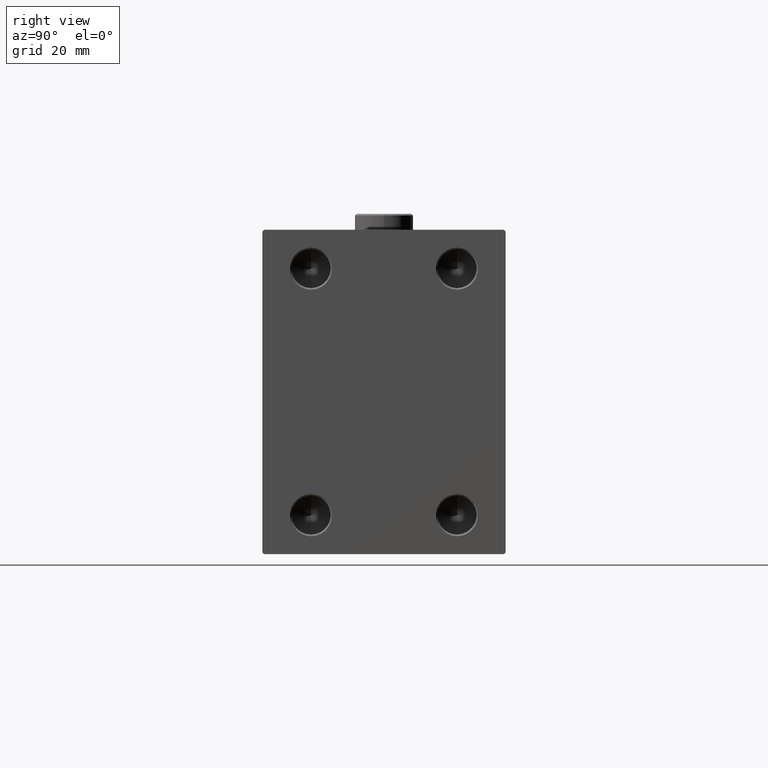
[diagram: clean part render]
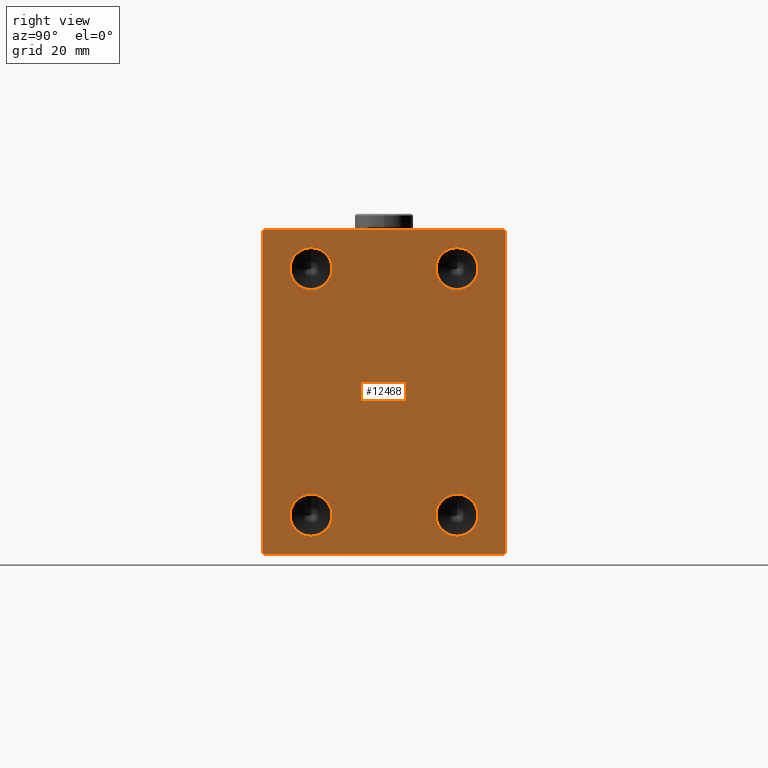
[diagram: same view with one face highlighted and labeled with its STEP entity id]
A machine part, right view. The second image highlights one B-rep face of the part: STEP entity #12468.
In plain terms, the highlighted planar face has unit normal (1, 0, 0).
Its self-contained STEP definition (entity closure, byte-faithful):
#618 = AXIS2_PLACEMENT_3D ( 'NONE', #9733, #37678, #13403 ) ;
#1132 = LINE ( 'NONE', #43417, #23156 ) ;
#1168 = EDGE_CURVE ( 'NONE', #33137, #35123, #9252, .T. ) ;
#2166 = EDGE_CURVE ( 'NONE', #28271, #3316, #8556, .T. ) ;
#2216 = CARTESIAN_POINT ( 'NONE',  ( 173.0000000000000000, -43.50000000000000711, -43.50000000000000711 ) ) ;
#2869 = ORIENTED_EDGE ( 'NONE', *, *, #38230, .T. ) ;
#3316 = VERTEX_POINT ( 'NONE', #43787 ) ;
#3393 = VECTOR ( 'NONE', #8949, 1000.000000000000000 ) ;
#4304 = CARTESIAN_POINT ( 'NONE',  ( 173.0000000000000000, 37.49999999999999289, 49.50000000000002842 ) ) ;
#5599 = VECTOR ( 'NONE', #15693, 1000.000000000000000 ) ;
#5793 = LINE ( 'NONE', #12944, #32581 ) ;
#6195 = CARTESIAN_POINT ( 'NONE',  ( 173.0000000000000000, -22.50000000000000000, -38.00000000000000711 ) ) ;
#6636 = FACE_BOUND ( 'NONE', #14952, .T. ) ;
#7573 = CARTESIAN_POINT ( 'NONE',  ( 173.0000000000000000, -22.50000000000000000, -31.49999999999994316 ) ) ;
#8236 = VERTEX_POINT ( 'NONE', #26557 ) ;
#8467 = CARTESIAN_POINT ( 'NONE',  ( 173.0000000000000000, -22.50000000000000000, -44.50000000000006395 ) ) ;
#8556 = CIRCLE ( 'NONE', #24040, 6.499999999999977796 ) ;
#8720 = ORIENTED_EDGE ( 'NONE', *, *, #17401, .T. ) ;
#8722 = CIRCLE ( 'NONE', #618, 6.499999999999977796 ) ;
#8789 = LINE ( 'NONE', #19170, #5599 ) ;
#8949 = DIRECTION ( 'NONE',  ( -0.000000000000000000, 0.7071067811865426878, 0.7071067811865524577 ) ) ;
#9091 = EDGE_CURVE ( 'NONE', #31760, #27064, #1132, .T. ) ;
#9252 = CIRCLE ( 'NONE', #26211, 6.500000000000061284 ) ;
#9345 = ORIENTED_EDGE ( 'NONE', *, *, #37558, .T. ) ;
#9417 = EDGE_CURVE ( 'NONE', #41060, #20981, #23919, .T. ) ;
#9733 = CARTESIAN_POINT ( 'NONE',  ( 173.0000000000000000, 22.50000000000000000, 37.99999999999999289 ) ) ;
#9832 = LINE ( 'NONE', #2216, #12772 ) ;
#9938 = DIRECTION ( 'NONE',  ( 0.000000000000000000, -1.387778780781445676E-16, 1.000000000000000000 ) ) ;
#10079 = CIRCLE ( 'NONE', #26312, 6.500000000000061284 ) ;
#11212 = ORIENTED_EDGE ( 'NONE', *, *, #19068, .T. ) ;
#12035 = CARTESIAN_POINT ( 'NONE',  ( 173.0000000000000000, -37.50000000000000000, 49.49999999999995737 ) ) ;
#12110 = AXIS2_PLACEMENT_3D ( 'NONE', #23905, #38000, #38692 ) ;
#12233 = VECTOR ( 'NONE', #36840, 1000.000000000000000 ) ;
#12468 = ADVANCED_FACE ( 'NONE', ( #38270, #13777, #6636, #27873, #41977 ), #38734, .T. ) ;
#12772 = VECTOR ( 'NONE', #23682, 1000.000000000000114 ) ;
#12944 = CARTESIAN_POINT ( 'NONE',  ( 173.0000000000000000, 37.50000000000000711, -50.00000000000000000 ) ) ;
#13403 = DIRECTION ( 'NONE',  ( 0.000000000000000000, 0.000000000000000000, -1.000000000000000000 ) ) ;
#13777 = FACE_BOUND ( 'NONE', #41000, .T. ) ;
#13935 = ORIENTED_EDGE ( 'NONE', *, *, #23978, .F. ) ;
#14119 = CARTESIAN_POINT ( 'NONE',  ( 173.0000000000000000, -37.00000000000000000, -50.00000000000000000 ) ) ;
#14214 = LINE ( 'NONE', #34552, #34369 ) ;
#14283 = EDGE_CURVE ( 'NONE', #39723, #31306, #8789, .T. ) ;
#14311 = CARTESIAN_POINT ( 'NONE',  ( 173.0000000000000000, -36.99999999999999289, 49.99999999999998579 ) ) ;
#14920 = DIRECTION ( 'NONE',  ( 0.000000000000000000, 0.000000000000000000, -1.000000000000000000 ) ) ;
#14922 = DIRECTION ( 'NONE',  ( 0.000000000000000000, 0.000000000000000000, -1.000000000000000000 ) ) ;
#14952 = EDGE_LOOP ( 'NONE', ( #41540, #41577 ) ) ;
#15013 = ORIENTED_EDGE ( 'NONE', *, *, #21672, .F. ) ;
#15144 = ORIENTED_EDGE ( 'NONE', *, *, #9417, .F. ) ;
#15147 = DIRECTION ( 'NONE',  ( 1.000000000000000000, 0.000000000000000000, 0.000000000000000000 ) ) ;
#15693 = DIRECTION ( 'NONE',  ( 0.000000000000000000, -1.000000000000000000, -2.775557561562891844E-16 ) ) ;
#16221 = VECTOR ( 'NONE', #38111, 1000.000000000000000 ) ;
#17177 = CIRCLE ( 'NONE', #34174, 6.500000000000061284 ) ;
#17401 = EDGE_CURVE ( 'NONE', #43215, #8236, #14214, .T. ) ;
#18196 = AXIS2_PLACEMENT_3D ( 'NONE', #19700, #37019, #44907 ) ;
#18328 = VERTEX_POINT ( 'NONE', #4304 ) ;
#18418 = ORIENTED_EDGE ( 'NONE', *, *, #9091, .T. ) ;
#18724 = EDGE_CURVE ( 'NONE', #8236, #38717, #44309, .T. ) ;
#19068 = EDGE_CURVE ( 'NONE', #18328, #39723, #22743, .T. ) ;
#19170 = CARTESIAN_POINT ( 'NONE',  ( 173.0000000000000000, 37.49999999999999289, 50.00000000000000711 ) ) ;
#19700 = CARTESIAN_POINT ( 'NONE',  ( 173.0000000000000000, -22.50000000000000000, 37.99999999999999289 ) ) ;
#20644 = EDGE_LOOP ( 'NONE', ( #22495, #13935 ) ) ;
#20981 = VERTEX_POINT ( 'NONE', #41635 ) ;
#21207 = CIRCLE ( 'NONE', #44121, 6.500000000000061284 ) ;
#21299 = EDGE_CURVE ( 'NONE', #43776, #33874, #10079, .T. ) ;
#21376 = CARTESIAN_POINT ( 'NONE',  ( 173.0000000000000000, 22.50000000000000000, 37.99999999999999289 ) ) ;
#21672 = EDGE_CURVE ( 'NONE', #20981, #41060, #44825, .T. ) ;
#21769 = CARTESIAN_POINT ( 'NONE',  ( 173.0000000000000000, 22.50000000000000000, 44.49999999999997158 ) ) ;
#22055 = ORIENTED_EDGE ( 'NONE', *, *, #38555, .F. ) ;
#22495 = ORIENTED_EDGE ( 'NONE', *, *, #2166, .F. ) ;
#22743 = LINE ( 'NONE', #43579, #12233 ) ;
#22791 = EDGE_LOOP ( 'NONE', ( #36214, #32909, #18418, #2869, #8720, #32237, #9345, #11212 ) ) ;
#23156 = VECTOR ( 'NONE', #29747, 1000.000000000000000 ) ;
#23157 = EDGE_CURVE ( 'NONE', #35123, #33137, #21207, .T. ) ;
#23682 = DIRECTION ( 'NONE',  ( -0.000000000000000000, 0.7071067811865474617, -0.7071067811865474617 ) ) ;
#23905 = CARTESIAN_POINT ( 'NONE',  ( 173.0000000000000000, -22.50000000000000000, 37.99999999999999289 ) ) ;
#23919 = CIRCLE ( 'NONE', #12110, 6.499999999999977796 ) ;
#23978 = EDGE_CURVE ( 'NONE', #3316, #28271, #8722, .T. ) ;
#24040 = AXIS2_PLACEMENT_3D ( 'NONE', #21376, #29224, #35470 ) ;
#24105 = CARTESIAN_POINT ( 'NONE',  ( 173.0000000000000000, 37.00000000000002132, 50.00000000000000711 ) ) ;
#24545 = DIRECTION ( 'NONE',  ( 1.000000000000000000, -0.000000000000000000, -0.000000000000000000 ) ) ;
#25008 = DIRECTION ( 'NONE',  ( 0.000000000000000000, 0.000000000000000000, -1.000000000000000000 ) ) ;
#26211 = AXIS2_PLACEMENT_3D ( 'NONE', #39326, #24545, #25008 ) ;
#26312 = AXIS2_PLACEMENT_3D ( 'NONE', #39876, #40322, #14920 ) ;
#26557 = CARTESIAN_POINT ( 'NONE',  ( 173.0000000000000000, 37.00000000000004263, -50.00000000000000000 ) ) ;
#27041 = CARTESIAN_POINT ( 'NONE',  ( 173.0000000000000000, 22.50000000000000000, -38.00000000000000711 ) ) ;
#27064 = VERTEX_POINT ( 'NONE', #30847 ) ;
#27118 = ORIENTED_EDGE ( 'NONE', *, *, #21299, .F. ) ;
#27873 = FACE_BOUND ( 'NONE', #31885, .T. ) ;
#28167 = CARTESIAN_POINT ( 'NONE',  ( 173.0000000000000000, 37.50000000000000711, -49.50000000000002842 ) ) ;
#28271 = VERTEX_POINT ( 'NONE', #21769 ) ;
#28301 = DIRECTION ( 'NONE',  ( 0.000000000000000000, 1.000000000000000000, 0.000000000000000000 ) ) ;
#29224 = DIRECTION ( 'NONE',  ( 1.000000000000000000, -0.000000000000000000, -0.000000000000000000 ) ) ;
#29511 = EDGE_CURVE ( 'NONE', #31306, #31760, #30730, .T. ) ;
#29747 = DIRECTION ( 'NONE',  ( 0.000000000000000000, 0.000000000000000000, -1.000000000000000000 ) ) ;
#30730 = LINE ( 'NONE', #41813, #16221 ) ;
#30847 = CARTESIAN_POINT ( 'NONE',  ( 173.0000000000000000, -37.50000000000000000, -49.49999999999997158 ) ) ;
#31306 = VERTEX_POINT ( 'NONE', #14311 ) ;
#31760 = VERTEX_POINT ( 'NONE', #12035 ) ;
#31802 = CARTESIAN_POINT ( 'NONE',  ( 173.0000000000000000, 0.000000000000000000, 0.000000000000000000 ) ) ;
#31885 = EDGE_LOOP ( 'NONE', ( #27118, #22055 ) ) ;
#32237 = ORIENTED_EDGE ( 'NONE', *, *, #18724, .T. ) ;
#32581 = VECTOR ( 'NONE', #9938, 1000.000000000000000 ) ;
#32909 = ORIENTED_EDGE ( 'NONE', *, *, #29511, .T. ) ;
#33137 = VERTEX_POINT ( 'NONE', #7573 ) ;
#33874 = VERTEX_POINT ( 'NONE', #44133 ) ;
#34174 = AXIS2_PLACEMENT_3D ( 'NONE', #27041, #37894, #45088 ) ;
#34369 = VECTOR ( 'NONE', #28301, 1000.000000000000000 ) ;
#34552 = CARTESIAN_POINT ( 'NONE',  ( 173.0000000000000000, -37.50000000000000000, -50.00000000000000000 ) ) ;
#35123 = VERTEX_POINT ( 'NONE', #8467 ) ;
#35470 = DIRECTION ( 'NONE',  ( 0.000000000000000000, 0.000000000000000000, -1.000000000000000000 ) ) ;
#36123 = CARTESIAN_POINT ( 'NONE',  ( 173.0000000000000000, 22.50000000000000000, -31.49999999999994316 ) ) ;
#36214 = ORIENTED_EDGE ( 'NONE', *, *, #14283, .T. ) ;
#36840 = DIRECTION ( 'NONE',  ( -0.000000000000000000, -0.7071067811865426878, 0.7071067811865524577 ) ) ;
#37019 = DIRECTION ( 'NONE',  ( 1.000000000000000000, -0.000000000000000000, -0.000000000000000000 ) ) ;
#37558 = EDGE_CURVE ( 'NONE', #38717, #18328, #5793, .T. ) ;
#37678 = DIRECTION ( 'NONE',  ( 1.000000000000000000, -0.000000000000000000, -0.000000000000000000 ) ) ;
#37830 = DIRECTION ( 'NONE',  ( 1.000000000000000000, -0.000000000000000000, -0.000000000000000000 ) ) ;
#37894 = DIRECTION ( 'NONE',  ( 1.000000000000000000, -0.000000000000000000, -0.000000000000000000 ) ) ;
#38000 = DIRECTION ( 'NONE',  ( 1.000000000000000000, -0.000000000000000000, -0.000000000000000000 ) ) ;
#38111 = DIRECTION ( 'NONE',  ( 0.000000000000000000, -0.7071067811865328068, -0.7071067811865622277 ) ) ;
#38230 = EDGE_CURVE ( 'NONE', #27064, #43215, #9832, .T. ) ;
#38270 = FACE_BOUND ( 'NONE', #20644, .T. ) ;
#38521 = DIRECTION ( 'NONE',  ( 0.000000000000000000, 0.000000000000000000, -1.000000000000000000 ) ) ;
#38555 = EDGE_CURVE ( 'NONE', #33874, #43776, #17177, .T. ) ;
#38692 = DIRECTION ( 'NONE',  ( 0.000000000000000000, 0.000000000000000000, -1.000000000000000000 ) ) ;
#38717 = VERTEX_POINT ( 'NONE', #28167 ) ;
#38734 = PLANE ( 'NONE',  #43199 ) ;
#39326 = CARTESIAN_POINT ( 'NONE',  ( 173.0000000000000000, -22.50000000000000000, -38.00000000000000711 ) ) ;
#39723 = VERTEX_POINT ( 'NONE', #24105 ) ;
#39876 = CARTESIAN_POINT ( 'NONE',  ( 173.0000000000000000, 22.50000000000000000, -38.00000000000000711 ) ) ;
#40322 = DIRECTION ( 'NONE',  ( 1.000000000000000000, -0.000000000000000000, -0.000000000000000000 ) ) ;
#40591 = CARTESIAN_POINT ( 'NONE',  ( 173.0000000000000000, 43.50000000000027711, -43.49999999999968026 ) ) ;
#41000 = EDGE_LOOP ( 'NONE', ( #15144, #15013 ) ) ;
#41060 = VERTEX_POINT ( 'NONE', #41853 ) ;
#41540 = ORIENTED_EDGE ( 'NONE', *, *, #1168, .F. ) ;
#41577 = ORIENTED_EDGE ( 'NONE', *, *, #23157, .F. ) ;
#41635 = CARTESIAN_POINT ( 'NONE',  ( 173.0000000000000000, -22.50000000000000000, 31.50000000000001421 ) ) ;
#41813 = CARTESIAN_POINT ( 'NONE',  ( 173.0000000000000000, -43.50000000000076028, 43.49999999999894840 ) ) ;
#41853 = CARTESIAN_POINT ( 'NONE',  ( 173.0000000000000000, -22.50000000000000000, 44.49999999999997158 ) ) ;
#41977 = FACE_OUTER_BOUND ( 'NONE', #22791, .T. ) ;
#43199 = AXIS2_PLACEMENT_3D ( 'NONE', #31802, #15147, #14922 ) ;
#43215 = VERTEX_POINT ( 'NONE', #14119 ) ;
#43417 = CARTESIAN_POINT ( 'NONE',  ( 173.0000000000000000, -37.50000000000000000, 49.99999999999998579 ) ) ;
#43579 = CARTESIAN_POINT ( 'NONE',  ( 173.0000000000000000, 43.50000000000027001, 43.49999999999966604 ) ) ;
#43776 = VERTEX_POINT ( 'NONE', #36123 ) ;
#43787 = CARTESIAN_POINT ( 'NONE',  ( 173.0000000000000000, 22.50000000000000000, 31.50000000000001421 ) ) ;
#44121 = AXIS2_PLACEMENT_3D ( 'NONE', #6195, #37830, #38521 ) ;
#44133 = CARTESIAN_POINT ( 'NONE',  ( 173.0000000000000000, 22.50000000000000000, -44.50000000000006395 ) ) ;
#44309 = LINE ( 'NONE', #40591, #3393 ) ;
#44825 = CIRCLE ( 'NONE', #18196, 6.499999999999977796 ) ;
#44907 = DIRECTION ( 'NONE',  ( 0.000000000000000000, 0.000000000000000000, -1.000000000000000000 ) ) ;
#45088 = DIRECTION ( 'NONE',  ( 0.000000000000000000, 0.000000000000000000, -1.000000000000000000 ) ) ;